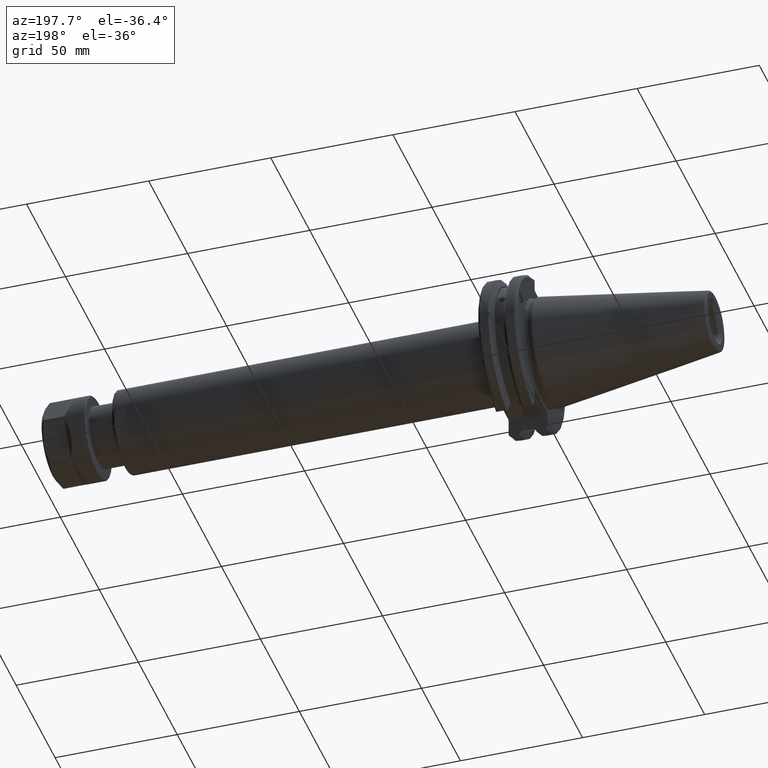
[diagram: clean part render]
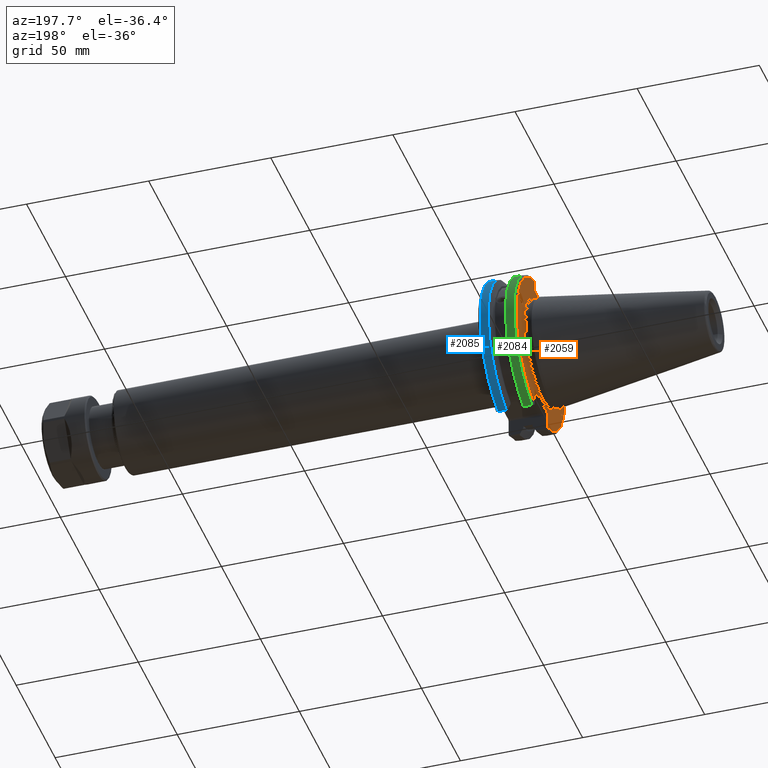
[diagram: same view with three faces highlighted in distinct colors, each labeled with its STEP entity id]
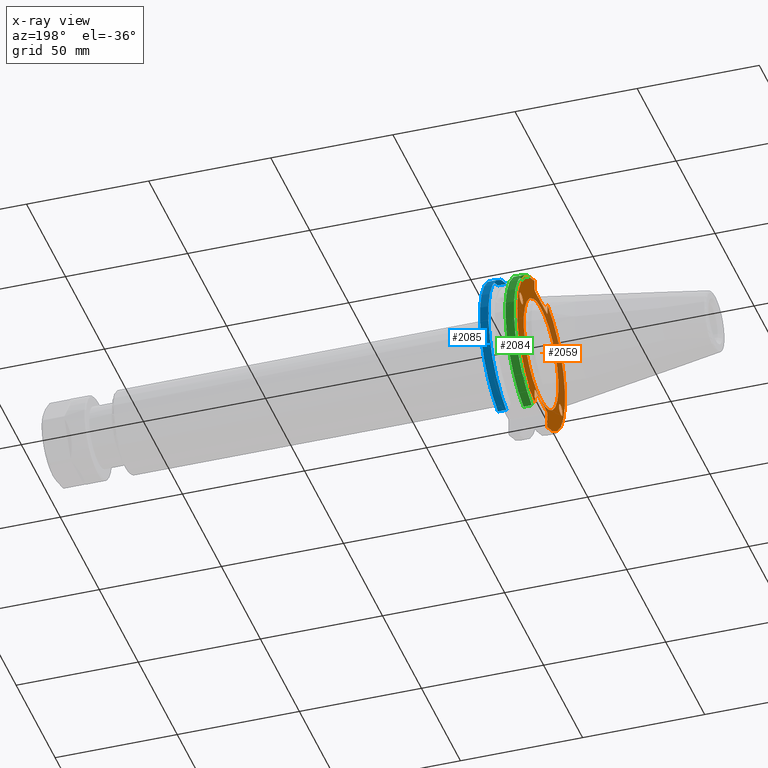
[diagram: x-ray of the same camera — body ghosted, the three highlighted faces saturated]
A machine part, auxiliary view with three faces highlighted in distinct colors.
The next image is the same camera in x-ray (body ghosted, the three faces saturated) — at least one of them is partly hidden behind the body in this view.
Their STEP definitions:

[orange] entity #2059 — the highlighted planar face has unit normal (-1, 0, 0).
#92=ELLIPSE('',#2277,2.44154917752292,2.00000000000001);
#101=ELLIPSE('',#2320,2.44154917752292,2.00000000000001);
#195=FACE_BOUND('',#438,.T.);
#196=FACE_BOUND('',#439,.T.);
#197=FACE_BOUND('',#440,.T.);
#220=PLANE('',#2326);
#308=FACE_OUTER_BOUND('',#437,.T.);
#437=EDGE_LOOP('',(#1624,#1625,#1626,#1627,#1628,#1629,#1630,#1631,#1632,
#1633,#1634,#1635));
#438=EDGE_LOOP('',(#1636));
#439=EDGE_LOOP('',(#1637));
#440=EDGE_LOOP('',(#1638));
#572=LINE('',#3586,#694);
#573=LINE('',#3588,#695);
#574=LINE('',#3590,#696);
#575=LINE('',#3592,#697);
#576=LINE('',#3594,#698);
#577=LINE('',#3598,#699);
#578=LINE('',#3600,#700);
#579=LINE('',#3602,#701);
#580=LINE('',#3604,#702);
#581=LINE('',#3605,#703);
#694=VECTOR('',#2752,10.);
#695=VECTOR('',#2753,10.);
#696=VECTOR('',#2754,10.);
#697=VECTOR('',#2755,10.);
#698=VECTOR('',#2756,10.);
#699=VECTOR('',#2759,10.);
#700=VECTOR('',#2760,10.);
#701=VECTOR('',#2761,10.);
#702=VECTOR('',#2762,10.);
#703=VECTOR('',#2763,10.);
#822=CIRCLE('',#2324,22.3);
#824=CIRCLE('',#2327,30.75);
#825=CIRCLE('',#2328,30.75);
#936=VERTEX_POINT('',#3387);
#976=VERTEX_POINT('',#3570);
#979=VERTEX_POINT('',#3577);
#980=VERTEX_POINT('',#3582);
#981=VERTEX_POINT('',#3583);
#982=VERTEX_POINT('',#3585);
#983=VERTEX_POINT('',#3587);
#984=VERTEX_POINT('',#3589);
#985=VERTEX_POINT('',#3591);
#986=VERTEX_POINT('',#3593);
#987=VERTEX_POINT('',#3595);
#988=VERTEX_POINT('',#3597);
#989=VERTEX_POINT('',#3599);
#990=VERTEX_POINT('',#3601);
#991=VERTEX_POINT('',#3603);
#1160=EDGE_CURVE('',#936,#936,#92,.T.);
#1216=EDGE_CURVE('',#976,#976,#101,.T.);
#1219=EDGE_CURVE('',#979,#979,#822,.T.);
#1221=EDGE_CURVE('',#980,#981,#824,.T.);
#1222=EDGE_CURVE('',#980,#982,#572,.T.);
#1223=EDGE_CURVE('',#983,#982,#573,.T.);
#1224=EDGE_CURVE('',#983,#984,#574,.T.);
#1225=EDGE_CURVE('',#985,#984,#575,.T.);
#1226=EDGE_CURVE('',#985,#986,#576,.T.);
#1227=EDGE_CURVE('',#987,#986,#825,.T.);
#1228=EDGE_CURVE('',#987,#988,#577,.T.);
#1229=EDGE_CURVE('',#989,#988,#578,.T.);
#1230=EDGE_CURVE('',#989,#990,#579,.T.);
#1231=EDGE_CURVE('',#991,#990,#580,.T.);
#1232=EDGE_CURVE('',#991,#981,#581,.T.);
#1624=ORIENTED_EDGE('',*,*,#1221,.F.);
#1625=ORIENTED_EDGE('',*,*,#1222,.T.);
#1626=ORIENTED_EDGE('',*,*,#1223,.F.);
#1627=ORIENTED_EDGE('',*,*,#1224,.T.);
#1628=ORIENTED_EDGE('',*,*,#1225,.F.);
#1629=ORIENTED_EDGE('',*,*,#1226,.T.);
#1630=ORIENTED_EDGE('',*,*,#1227,.F.);
#1631=ORIENTED_EDGE('',*,*,#1228,.T.);
#1632=ORIENTED_EDGE('',*,*,#1229,.F.);
#1633=ORIENTED_EDGE('',*,*,#1230,.T.);
#1634=ORIENTED_EDGE('',*,*,#1231,.F.);
#1635=ORIENTED_EDGE('',*,*,#1232,.T.);
#1636=ORIENTED_EDGE('',*,*,#1160,.T.);
#1637=ORIENTED_EDGE('',*,*,#1216,.T.);
#1638=ORIENTED_EDGE('',*,*,#1219,.F.);
#2059=ADVANCED_FACE('',(#308,#195,#196,#197),#220,.T.);
#2277=AXIS2_PLACEMENT_3D('',#3389,#2633,#2634);
#2320=AXIS2_PLACEMENT_3D('',#3572,#2736,#2737);
#2324=AXIS2_PLACEMENT_3D('',#3579,#2744,#2745);
#2326=AXIS2_PLACEMENT_3D('',#3581,#2748,#2749);
#2327=AXIS2_PLACEMENT_3D('',#3584,#2750,#2751);
#2328=AXIS2_PLACEMENT_3D('',#3596,#2757,#2758);
#2633=DIRECTION('center_axis',(1.,0.,0.));
#2634=DIRECTION('ref_axis',(5.68400912649E-17,-0.939692620785909,-0.342020143325667));
#2736=DIRECTION('center_axis',(1.,0.,0.));
#2737=DIRECTION('ref_axis',(5.68400912649E-17,0.939692620785909,0.342020143325667));
#2744=DIRECTION('center_axis',(-1.,0.,0.));
#2745=DIRECTION('ref_axis',(0.,-1.,1.83697019872103E-16));
#2748=DIRECTION('center_axis',(-1.,0.,0.));
#2749=DIRECTION('ref_axis',(0.,0.,1.));
#2750=DIRECTION('center_axis',(1.,0.,0.));
#2751=DIRECTION('ref_axis',(0.,-1.,1.60812264967664E-16));
#2752=DIRECTION('',(0.,0.,-1.));
#2753=DIRECTION('',(0.,-0.70710678118655,0.707106781186545));
#2754=DIRECTION('',(0.,1.,0.));
#2755=DIRECTION('',(0.,-0.707106781186549,-0.707106781186546));
#2756=DIRECTION('',(0.,0.,1.));
#2757=DIRECTION('center_axis',(1.,0.,0.));
#2758=DIRECTION('ref_axis',(0.,1.,1.60812264967664E-16));
#2759=DIRECTION('',(0.,0.,1.));
#2760=DIRECTION('',(0.,0.707106781186549,-0.707106781186546));
#2761=DIRECTION('',(0.,-1.,0.));
#2762=DIRECTION('',(0.,0.707106781186549,0.707106781186546));
#2763=DIRECTION('',(0.,0.,-1.));
#3387=CARTESIAN_POINT('',(3.175,-23.0773950158153,-8.39948487016));
#3389=CARTESIAN_POINT('Origin',(3.175,-25.3717007612195,-9.23454386979305));
#3570=CARTESIAN_POINT('',(3.175,23.0773950158153,8.39948487016));
#3572=CARTESIAN_POINT('Origin',(3.175,25.3717007612195,9.23454386979306));
#3577=CARTESIAN_POINT('',(3.175,-2.7309623620986E-15,22.3));
#3579=CARTESIAN_POINT('Origin',(3.175,0.,0.));
#3581=CARTESIAN_POINT('Origin',(3.175,31.75,0.));
#3582=CARTESIAN_POINT('',(3.175,-8.18999999999999,29.6392712461019));
#3583=CARTESIAN_POINT('',(3.175,-8.19,-29.6392712461019));
#3584=CARTESIAN_POINT('Origin',(3.175,0.,0.));
#3585=CARTESIAN_POINT('',(3.175,-8.18999999999999,25.5));
#3586=CARTESIAN_POINT('',(3.175,-8.18999999999999,12.5));
#3587=CARTESIAN_POINT('',(3.175,-7.68999999999999,25.));
#3588=CARTESIAN_POINT('',(3.175,8.29500000000007,9.01500000000004));
#3589=CARTESIAN_POINT('',(3.175,7.69,25.));
#3590=CARTESIAN_POINT('',(3.175,15.875,25.));
#3591=CARTESIAN_POINT('',(3.175,8.19,25.5));
#3592=CARTESIAN_POINT('',(3.175,7.58000000000002,24.89));
#3593=CARTESIAN_POINT('',(3.175,8.19,29.6392712461019));
#3594=CARTESIAN_POINT('',(3.175,8.19,12.5));
#3595=CARTESIAN_POINT('',(3.175,8.18999999999999,-29.6392712461019));
#3596=CARTESIAN_POINT('Origin',(3.175,0.,0.));
#3597=CARTESIAN_POINT('',(3.175,8.18999999999999,-23.1));
#3598=CARTESIAN_POINT('',(3.175,8.18999999999999,-11.3));
#3599=CARTESIAN_POINT('',(3.175,7.69,-22.6));
#3600=CARTESIAN_POINT('',(3.175,8.18000000000002,-23.09));
#3601=CARTESIAN_POINT('',(3.175,-7.69,-22.6));
#3602=CARTESIAN_POINT('',(3.175,15.875,-22.6));
#3603=CARTESIAN_POINT('',(3.175,-8.19,-23.1));
#3604=CARTESIAN_POINT('',(3.175,7.69500000000004,-7.21500000000002));
#3605=CARTESIAN_POINT('',(3.175,-8.19,-11.3));

[blue] entity #2085 — the highlighted cylindrical surface (partial cylindrical patch) has radius 31.75 mm, axis along (1, 0, 0).
#173=CYLINDRICAL_SURFACE('',#2367,31.75);
#334=FACE_OUTER_BOUND('',#467,.T.);
#467=EDGE_LOOP('',(#1780,#1781,#1782,#1783));
#584=LINE('',#3646,#706);
#613=LINE('',#3845,#735);
#706=VECTOR('',#2776,10.);
#735=VECTOR('',#2873,10.);
#813=CIRCLE('',#2306,31.75);
#827=CIRCLE('',#2332,31.75);
#966=VERTEX_POINT('',#3532);
#967=VERTEX_POINT('',#3536);
#995=VERTEX_POINT('',#3625);
#996=VERTEX_POINT('',#3634);
#1201=EDGE_CURVE('',#967,#966,#813,.T.);
#1238=EDGE_CURVE('',#995,#996,#827,.T.);
#1241=EDGE_CURVE('',#967,#995,#584,.T.);
#1300=EDGE_CURVE('',#996,#966,#613,.T.);
#1780=ORIENTED_EDGE('',*,*,#1238,.F.);
#1781=ORIENTED_EDGE('',*,*,#1241,.F.);
#1782=ORIENTED_EDGE('',*,*,#1201,.T.);
#1783=ORIENTED_EDGE('',*,*,#1300,.F.);
#2085=ADVANCED_FACE('',(#334),#173,.T.);
#2306=AXIS2_PLACEMENT_3D('',#3537,#2702,#2703);
#2332=AXIS2_PLACEMENT_3D('',#3635,#2771,#2772);
#2367=AXIS2_PLACEMENT_3D('',#3844,#2871,#2872);
#2702=DIRECTION('center_axis',(1.,0.,0.));
#2703=DIRECTION('ref_axis',(0.,0.,-1.));
#2771=DIRECTION('center_axis',(1.,0.,0.));
#2772=DIRECTION('ref_axis',(0.,1.,-6.12323399573676E-17));
#2776=DIRECTION('',(1.,0.,0.));
#2871=DIRECTION('center_axis',(1.,0.,0.));
#2872=DIRECTION('ref_axis',(0.,1.,0.));
#2873=DIRECTION('',(-1.,0.,0.));
#3532=CARTESIAN_POINT('',(14.6531667690756,8.67204822802685,30.5427254764662));
#3536=CARTESIAN_POINT('',(14.6531667690756,8.67204822802685,-30.5427254764662));
#3537=CARTESIAN_POINT('Origin',(14.6531667690756,0.,0.));
#3625=CARTESIAN_POINT('',(18.05,8.67204822802685,-30.5427254764662));
#3634=CARTESIAN_POINT('',(18.05,8.67204822802685,30.5427254764662));
#3635=CARTESIAN_POINT('Origin',(18.05,0.,0.));
#3646=CARTESIAN_POINT('',(16.8515833845378,8.67204822802685,-30.5427254764662));
#3844=CARTESIAN_POINT('Origin',(16.8515833845378,0.,0.));
#3845=CARTESIAN_POINT('',(16.8515833845378,8.67204822802685,30.5427254764662));

[green] entity #2084 — the highlighted cylindrical surface (partial cylindrical patch) has radius 31.75 mm, axis along (1, 0, 0).
#172=CYLINDRICAL_SURFACE('',#2365,31.75);
#333=FACE_OUTER_BOUND('',#466,.T.);
#466=EDGE_LOOP('',(#1776,#1777,#1778,#1779));
#601=LINE('',#3800,#723);
#612=LINE('',#3842,#734);
#723=VECTOR('',#2821,10.);
#734=VECTOR('',#2868,10.);
#831=CIRCLE('',#2346,31.75);
#838=CIRCLE('',#2366,31.75);
#1018=VERTEX_POINT('',#3773);
#1019=VERTEX_POINT('',#3782);
#1020=VERTEX_POINT('',#3799);
#1027=VERTEX_POINT('',#3841);
#1276=EDGE_CURVE('',#1018,#1019,#831,.T.);
#1279=EDGE_CURVE('',#1019,#1020,#601,.T.);
#1298=EDGE_CURVE('',#1027,#1018,#612,.T.);
#1299=EDGE_CURVE('',#1020,#1027,#838,.T.);
#1776=ORIENTED_EDGE('',*,*,#1276,.F.);
#1777=ORIENTED_EDGE('',*,*,#1298,.F.);
#1778=ORIENTED_EDGE('',*,*,#1299,.F.);
#1779=ORIENTED_EDGE('',*,*,#1279,.F.);
#2084=ADVANCED_FACE('',(#333),#172,.T.);
#2346=AXIS2_PLACEMENT_3D('',#3783,#2817,#2818);
#2365=AXIS2_PLACEMENT_3D('',#3840,#2866,#2867);
#2366=AXIS2_PLACEMENT_3D('',#3843,#2869,#2870);
#2817=DIRECTION('center_axis',(-1.,0.,0.));
#2818=DIRECTION('ref_axis',(0.,1.,1.60812264967664E-16));
#2821=DIRECTION('',(1.,0.,0.));
#2866=DIRECTION('center_axis',(1.,0.,0.));
#2867=DIRECTION('ref_axis',(0.,1.,0.));
#2868=DIRECTION('',(-1.,0.,0.));
#2869=DIRECTION('center_axis',(1.,0.,0.));
#2870=DIRECTION('ref_axis',(0.,0.,-1.));
#3773=CARTESIAN_POINT('',(4.175,8.67204822802685,30.5427254764662));
#3782=CARTESIAN_POINT('',(4.175,8.67204822802685,-30.5427254764662));
#3783=CARTESIAN_POINT('Origin',(4.175,0.,0.));
#3799=CARTESIAN_POINT('',(7.60083323092435,8.67204822802685,-30.5427254764662));
#3800=CARTESIAN_POINT('',(5.38791661546218,8.67204822802685,-30.5427254764662));
#3840=CARTESIAN_POINT('Origin',(5.38791661546218,0.,0.));
#3841=CARTESIAN_POINT('',(7.60083323092435,8.67204822802685,30.5427254764662));
#3842=CARTESIAN_POINT('',(5.38791661546218,8.67204822802685,30.5427254764662));
#3843=CARTESIAN_POINT('Origin',(7.60083323092435,0.,0.));